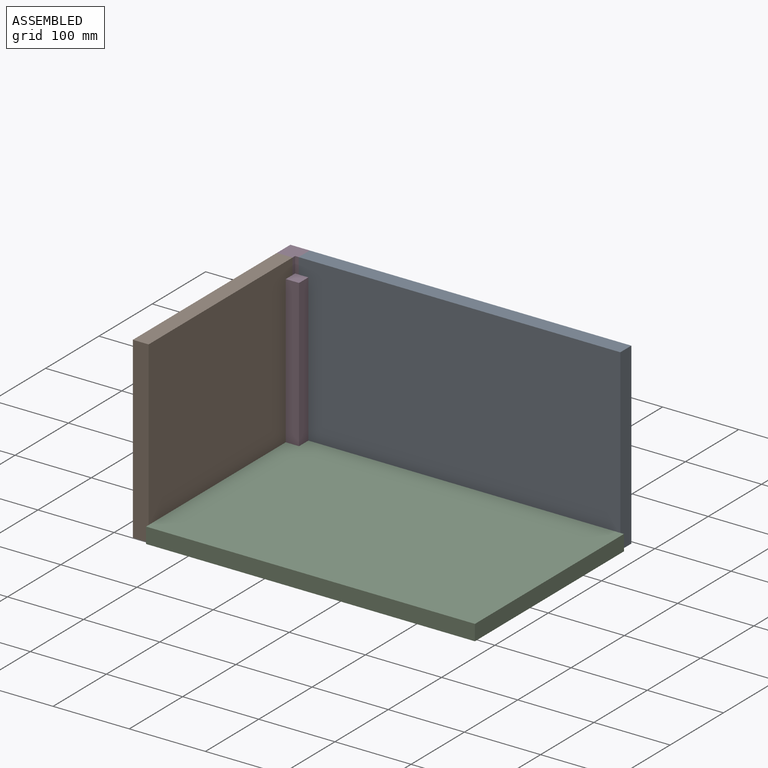
[diagram: assembled view]
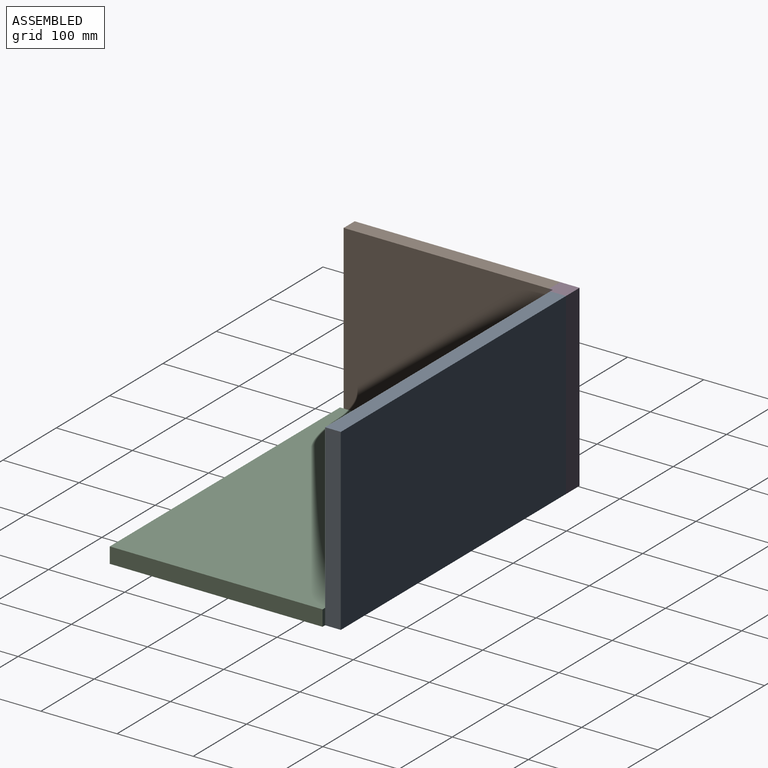
[diagram: assembled view, second angle]
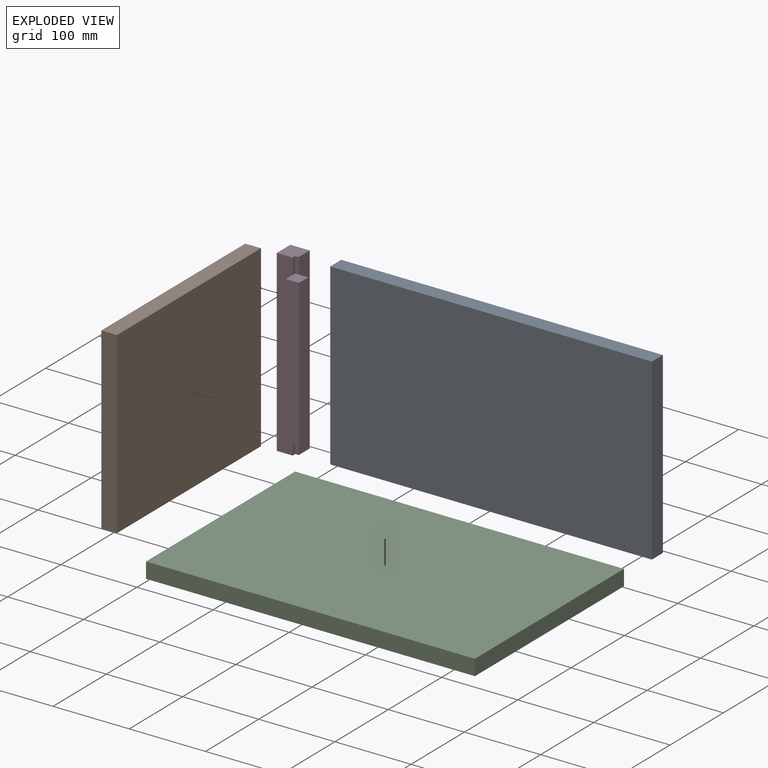
[diagram: exploded view]
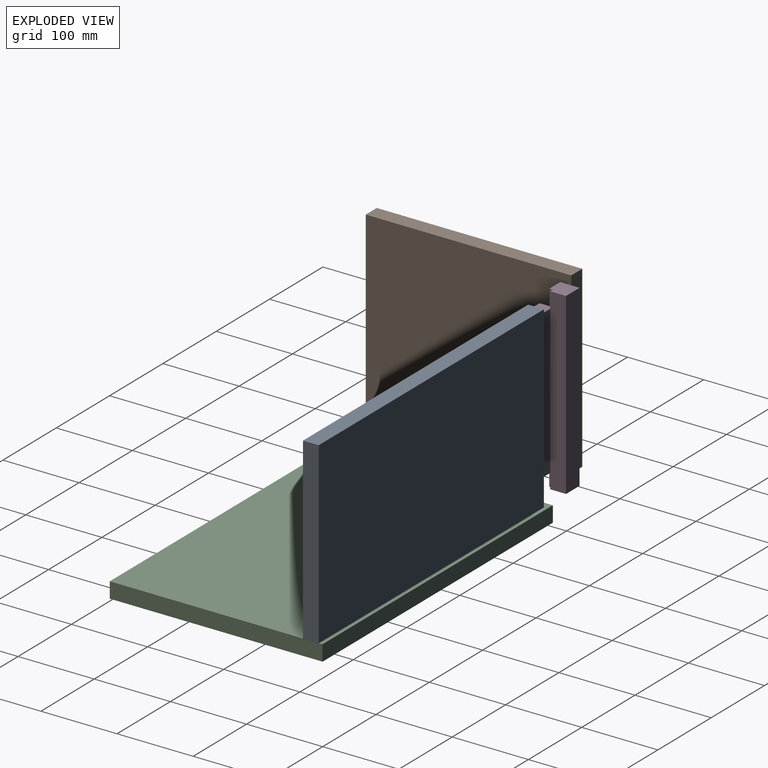
[diagram: exploded view, second angle]
ASSEMBLY  parts=4 mates=9
PART A: 6 faces, bbox 422.3x20.6x235 mm
  f0: plane 422.28x20.64mm, normal (0,0,-1), area 8714.7mm2, adj f1,f3,f4,f5
  f1: plane 234.95x20.64mm, normal (1,0,0), area 4848.8mm2, adj f0,f2,f4,f5
  f2: plane 422.28x20.64mm, normal (0,0,1), area 8714.7mm2, adj f1,f3,f4,f5
  f3: plane 234.95x20.64mm, normal (-1,0,0), area 4848.8mm2, adj f0,f2,f4,f5
  f4: plane 422.28x234.95mm, normal (0,-1,0), area 99213.5mm2, adj f0,f1,f2,f3
  f5: plane 422.28x234.95mm, normal (0,1,0), area 99213.5mm2, adj f0,f1,f2,f3
PART B: 6 faces, bbox 20.6x269.9x235 mm
  f0: plane 269.88x20.64mm, normal (0,0,-1), area 5569.5mm2, adj f1,f3,f4,f5
  f1: plane 234.95x20.64mm, normal (0,1,0), area 4848.8mm2, adj f0,f2,f4,f5
  f2: plane 269.88x20.64mm, normal (0,0,1), area 5569.5mm2, adj f1,f3,f4,f5
  f3: plane 234.95x20.64mm, normal (0,-1,0), area 4848.8mm2, adj f0,f2,f4,f5
  f4: plane 269.88x234.95mm, normal (1,0,0), area 63407.1mm2, adj f0,f1,f2,f3
  f5: plane 269.88x234.95mm, normal (-1,0,0), area 63407.1mm2, adj f0,f1,f2,f3
PART C: 6 faces, bbox 431.8x279.4x20.6 mm
  f0: plane 431.8x20.64mm, normal (0,-1,0), area 8911.3mm2, adj f1,f3,f4,f5
  f1: plane 279.4x20.64mm, normal (1,0,0), area 5766.1mm2, adj f0,f2,f4,f5
  f2: plane 431.8x20.64mm, normal (0,1,0), area 8911.3mm2, adj f1,f3,f4,f5
  f3: plane 279.4x20.64mm, normal (-1,0,0), area 5766.1mm2, adj f0,f2,f4,f5
  f4: plane 431.8x279.4mm, normal (0,0,1), area 120644.9mm2, adj f0,f1,f2,f3
  f5: plane 431.8x279.4mm, normal (0,0,-1), area 120644.9mm2, adj f0,f1,f2,f3
PART D: 16 faces, bbox 38.1x38.1x235 mm
  f0: plane 193.68x12.7mm, normal (0,1,0), area 2459.7mm2, adj f3,f8,f12,f15
  f1: plane 193.68x12.7mm, normal (-1,0,0), area 2459.7mm2, adj f2,f9,f12,f15
  f2: plane 193.68x17.46mm, normal (0,-1,0), area 3382mm2, adj f1,f3,f12,f15
  f3: plane 193.68x17.46mm, normal (1,0,0), area 3382mm2, adj f0,f2,f12,f15
  f4: plane 234.95x25.4mm, normal (0,1,0), area 5967.7mm2, adj f5,f6,f7,f8
  f5: plane 234.95x25.4mm, normal (-1,0,0), area 5967.7mm2, adj f4,f6,f7,f9
  f6: plane 25.4x25.4mm, normal (0,0,1), area 622.5mm2, adj f4,f5,f8,f9,f10,f11
  f7: plane 25.4x25.4mm, normal (0,0,-1), area 622.5mm2, adj f4,f5,f8,f9,f13,f14
  f8: plane 234.95x20.64mm, normal (1,0,0), area 4848.8mm2, adj f0,f4,f6,f7,f10,f13
  f9: plane 234.95x20.64mm, normal (0,-1,0), area 4848.8mm2, adj f1,f5,f6,f7,f11,f14
  f10: plane 20.64x4.76mm, normal (0,-1,0), area 98.3mm2, adj f6,f8,f11,f12
  f11: plane 20.64x4.76mm, normal (1,0,0), area 98.3mm2, adj f6,f9,f10,f12
  f12: plane 17.46x17.46mm, normal (0,0,1), area 304.9mm2, adj f0,f1,f2,f3,f10,f11
  f13: plane 20.64x4.76mm, normal (0,-1,0), area 98.3mm2, adj f7,f8,f14,f15
  f14: plane 20.64x4.76mm, normal (1,0,0), area 98.3mm2, adj f7,f9,f13,f15
  f15: plane 17.46x17.46mm, normal (0,0,-1), area 304.9mm2, adj f0,f1,f2,f3,f13,f14
PLACE A t=(233.85,7.48,-0.38)mm
PLACE B t=(-213.82,-17.92,-0.38)mm
PLACE C t=(238.61,-292.56,-0.38)mm
PLACE D t=(-175.72,-30.62,-0.38)mm
MATE planar A.f3 <-> D.f8  axis (-1,0,0) through (-188.42,-2.84,117.09)mm
MATE planar C.f5 <-> D.f7  axis (0,0,-1) through (22.71,-152.86,-0.38)mm
MATE planar C.f3 <-> B.f4  axis (-1,0,0) through (-193.19,-152.86,9.93)mm
MATE planar A.f2 <-> D.f6  axis (0,0,1) through (22.71,-2.84,234.57)mm
MATE planar A.f5 <-> D.f4  axis (0,1,0) through (22.71,7.48,117.09)mm
MATE planar C.f2 <-> A.f4  axis (0,1,0) through (22.71,-13.16,9.93)mm
MATE planar D.f5 <-> B.f5  axis (-1,0,0) through (-213.82,-5.22,117.09)mm
MATE planar B.f1 <-> D.f9  axis (0,1,0) through (-203.5,-17.92,117.09)mm
MATE planar D.f6 <-> B.f2  axis (0,0,1) through (-190.8,-13.16,234.57)mm
